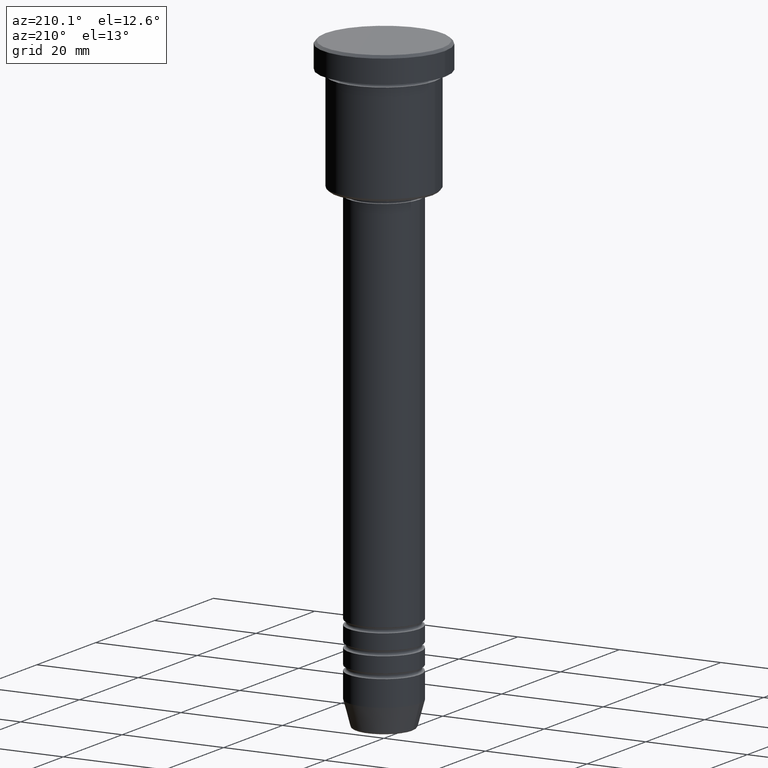
[diagram: clean part render]
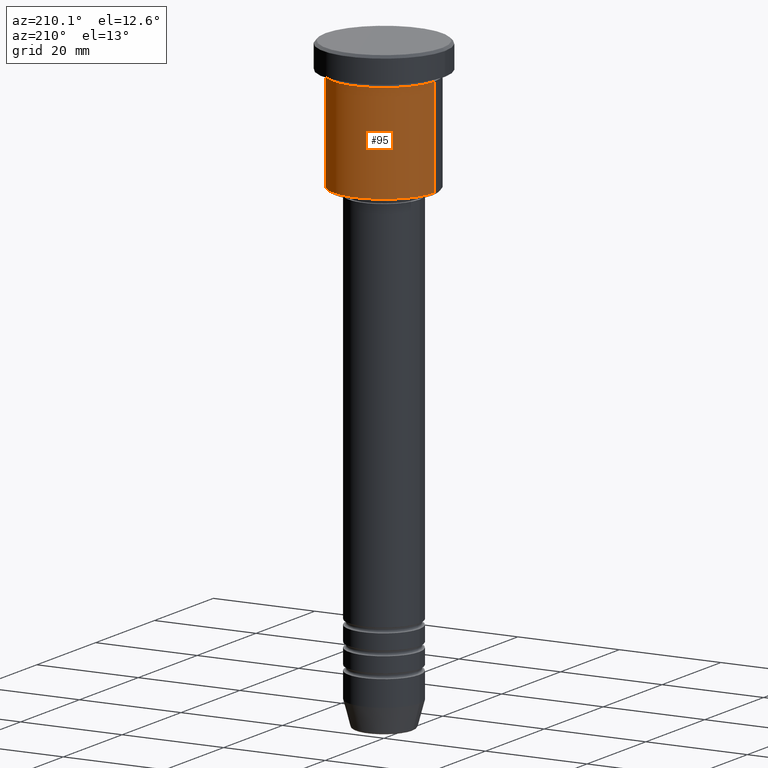
[diagram: same view with one face highlighted and labeled with its STEP entity id]
A machine part, auxiliary view. The second image highlights one B-rep face of the part: STEP entity #95.
In plain terms, the highlighted cylindrical surface (partial cylindrical patch) has radius 10 mm, axis along (-0, -0, 1).
Its self-contained STEP definition (entity closure, byte-faithful):
#48 = CARTESIAN_POINT ( 'NONE',  ( 9.999999999999998224, 0.000000000000000000, 0.000000000000000000 ) ) ;
#73 = CARTESIAN_POINT ( 'NONE',  ( -9.999999999999998224, 1.224646799147353059E-15, -25.49999999999999289 ) ) ;
#88 = CARTESIAN_POINT ( 'NONE',  ( -10.00000000000000000, 1.224646799147353256E-15, -6.000000000000000000 ) ) ;
#95 = ADVANCED_FACE ( 'NONE', ( #1072 ), #250, .T. ) ;
#124 = VECTOR ( 'NONE', #877, 1000.000000000000000 ) ;
#153 = LINE ( 'NONE', #521, #848 ) ;
#159 = CARTESIAN_POINT ( 'NONE',  ( 0.000000000000000000, 0.000000000000000000, 0.000000000000000000 ) ) ;
#163 = EDGE_LOOP ( 'NONE', ( #1107, #358, #727, #598 ) ) ;
#179 = CARTESIAN_POINT ( 'NONE',  ( 10.00000000000000000, 0.000000000000000000, -6.000000000000000000 ) ) ;
#183 = DIRECTION ( 'NONE',  ( 1.000000000000000000, 0.000000000000000000, 0.000000000000000000 ) ) ;
#201 = VERTEX_POINT ( 'NONE', #179 ) ;
#233 = DIRECTION ( 'NONE',  ( -0.000000000000000000, -0.000000000000000000, 1.000000000000000000 ) ) ;
#250 = CYLINDRICAL_SURFACE ( 'NONE', #442, 9.999999999999998224 ) ;
#253 = CIRCLE ( 'NONE', #1079, 10.00000000000000000 ) ;
#256 = VERTEX_POINT ( 'NONE', #73 ) ;
#299 = DIRECTION ( 'NONE',  ( -1.000000000000000000, 0.000000000000000000, 0.000000000000000000 ) ) ;
#342 = LINE ( 'NONE', #48, #124 ) ;
#345 = EDGE_CURVE ( 'NONE', #1180, #256, #949, .T. ) ;
#355 = DIRECTION ( 'NONE',  ( -0.000000000000000000, -0.000000000000000000, 1.000000000000000000 ) ) ;
#358 = ORIENTED_EDGE ( 'NONE', *, *, #917, .T. ) ;
#408 = DIRECTION ( 'NONE',  ( -0.000000000000000000, -0.000000000000000000, 1.000000000000000000 ) ) ;
#442 = AXIS2_PLACEMENT_3D ( 'NONE', #159, #233, #1050 ) ;
#521 = CARTESIAN_POINT ( 'NONE',  ( -9.999999999999998224, 1.224646799147353059E-15, 0.000000000000000000 ) ) ;
#579 = CARTESIAN_POINT ( 'NONE',  ( 0.000000000000000000, 0.000000000000000000, -25.49999999999999289 ) ) ;
#598 = ORIENTED_EDGE ( 'NONE', *, *, #876, .F. ) ;
#621 = EDGE_CURVE ( 'NONE', #201, #1064, #253, .T. ) ;
#727 = ORIENTED_EDGE ( 'NONE', *, *, #621, .F. ) ;
#848 = VECTOR ( 'NONE', #408, 1000.000000000000000 ) ;
#876 = EDGE_CURVE ( 'NONE', #1180, #201, #342, .T. ) ;
#877 = DIRECTION ( 'NONE',  ( -0.000000000000000000, -0.000000000000000000, 1.000000000000000000 ) ) ;
#917 = EDGE_CURVE ( 'NONE', #256, #1064, #153, .T. ) ;
#949 = CIRCLE ( 'NONE', #1147, 9.999999999999998224 ) ;
#996 = CARTESIAN_POINT ( 'NONE',  ( 0.000000000000000000, 0.000000000000000000, -6.000000000000000000 ) ) ;
#1050 = DIRECTION ( 'NONE',  ( 1.000000000000000000, 0.000000000000000000, 0.000000000000000000 ) ) ;
#1064 = VERTEX_POINT ( 'NONE', #88 ) ;
#1072 = FACE_OUTER_BOUND ( 'NONE', #163, .T. ) ;
#1079 = AXIS2_PLACEMENT_3D ( 'NONE', #996, #355, #183 ) ;
#1107 = ORIENTED_EDGE ( 'NONE', *, *, #345, .T. ) ;
#1124 = CARTESIAN_POINT ( 'NONE',  ( 9.999999999999998224, 0.000000000000000000, -25.49999999999999289 ) ) ;
#1139 = DIRECTION ( 'NONE',  ( -0.000000000000000000, -0.000000000000000000, 1.000000000000000000 ) ) ;
#1147 = AXIS2_PLACEMENT_3D ( 'NONE', #579, #1139, #299 ) ;
#1180 = VERTEX_POINT ( 'NONE', #1124 ) ;